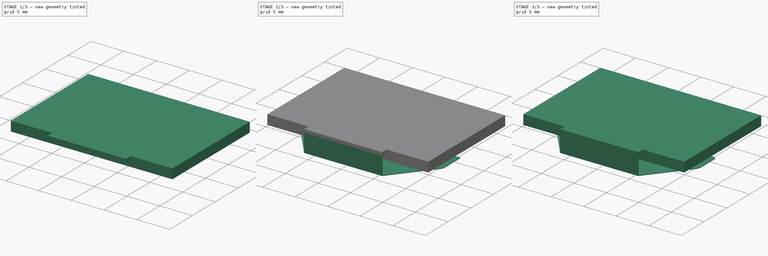
[diagram: build sequence overview — one tinted view per stage of 3, left to right]
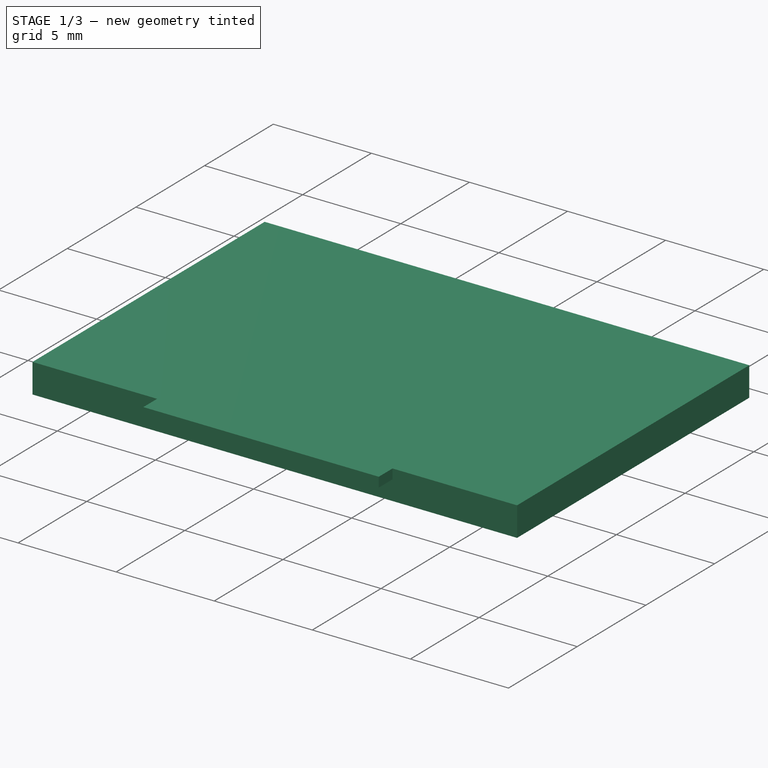
[diagram: stage 1 of 3 — iso view after this stage's code; geometry added in this stage tinted green]
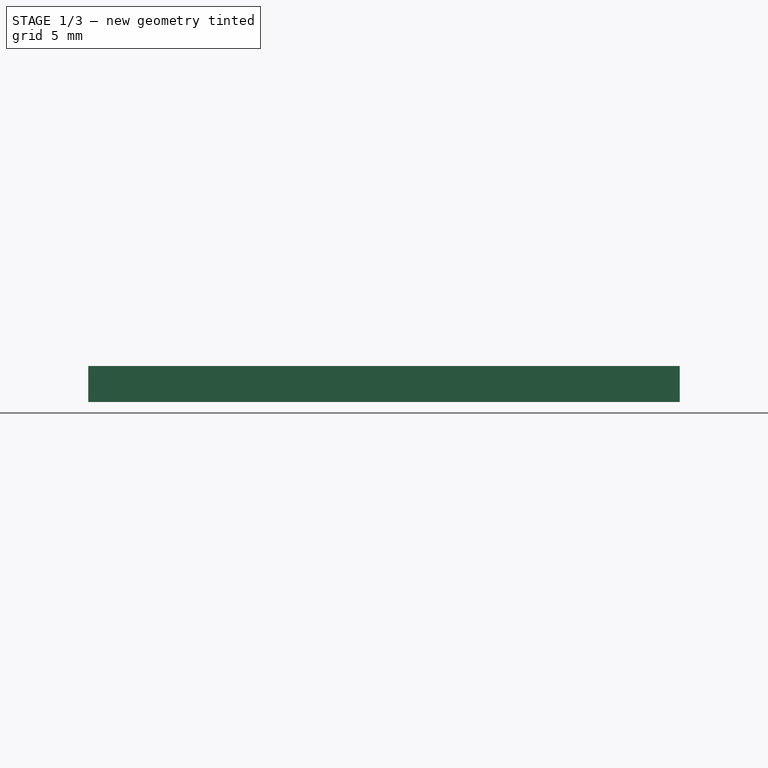
[diagram: stage 1 of 3 — front view after this stage's code; geometry added in this stage tinted green]
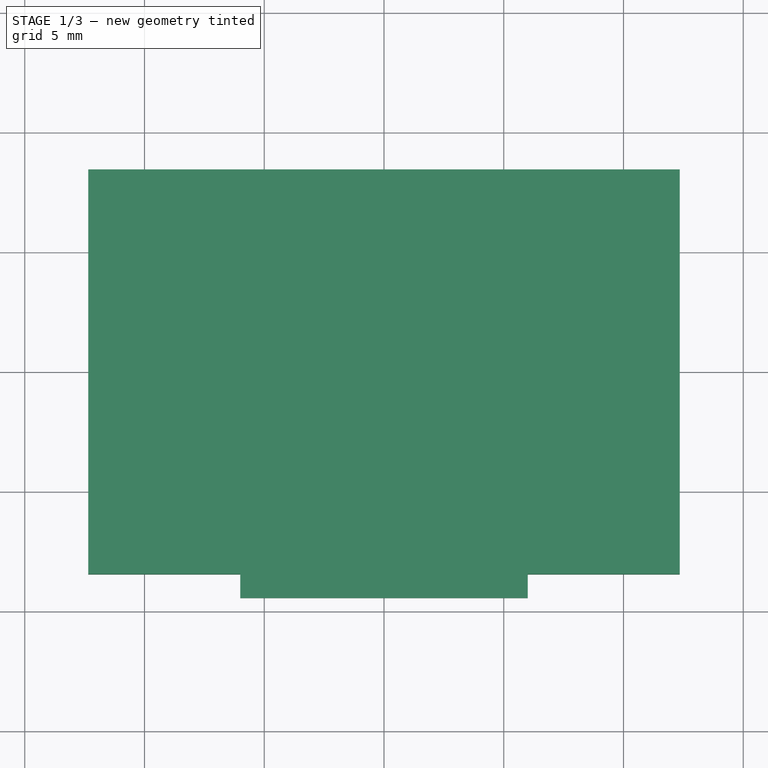
[diagram: stage 1 of 3 — top view after this stage's code; geometry added in this stage tinted green]
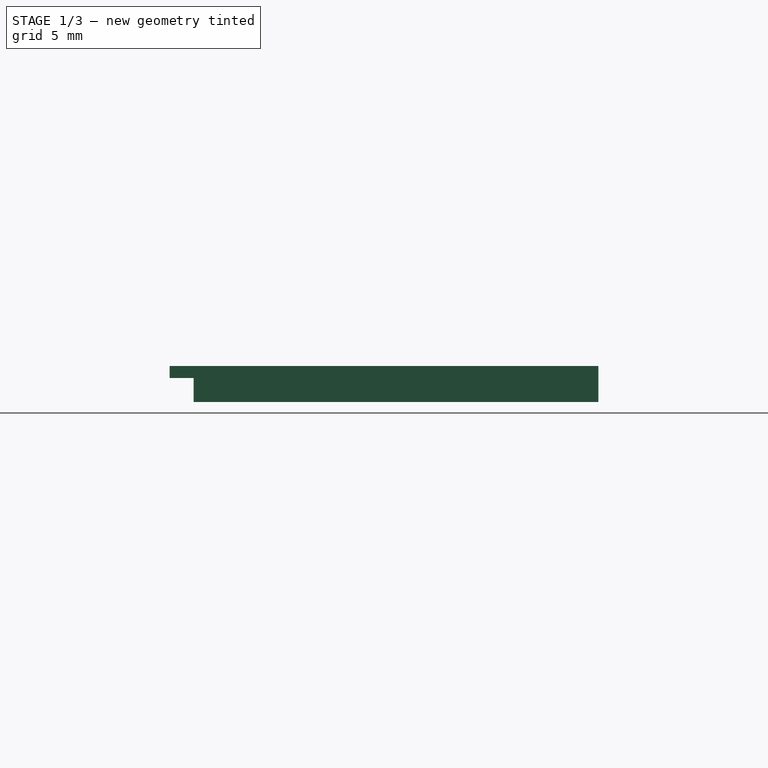
[diagram: stage 1 of 3 — right view after this stage's code; geometry added in this stage tinted green]
FCSTD DOCUMENT  (FreeCAD 0.20R29177 +426 (Git))
Label: 0.96Inch-3D-Model
License: All rights reserved
LicenseURL: http://en.wikipedia.org/wiki/All_rights_reserved
objects: Sketcher::SketchObject×5, PartDesign::Pad×5, PartDesign::Fillet×3, PartDesign::Body×1
note: 22 computed .brp shape members not serialized (recipe doc carries the construction recipe); baked Part::Feature solids carry a one-line shape summary decoded from their .brp

FEATURE [Sketcher::SketchObject] Sketch
  FullyConstrained = true
  MapMode = 5
  Support = -> [XY_Plane]
  sketch-geometry (4):
    g0: LineSegment StartX=-12.35 StartY=8.45 StartZ=0 EndX=12.35 EndY=8.45 EndZ=0
    g1: LineSegment StartX=12.35 StartY=8.45 StartZ=0 EndX=12.35 EndY=-8.45 EndZ=0
    g2: LineSegment StartX=12.35 StartY=-8.45 StartZ=0 EndX=-12.35 EndY=-8.45 EndZ=0
    g3: LineSegment StartX=-12.35 StartY=-8.45 StartZ=0 EndX=-12.35 EndY=8.45 EndZ=0
  constraints (11):
    c: Coincident(g0,g1)
    c: Coincident(g1,g2)
    c: Coincident(g2,g3)
    c: Coincident(g3,g0)
    c: Horizontal(g0)
    c: Horizontal(g2)
    c: Vertical(g1)
    c: Vertical(g3)
    c: DistanceX(g0,g0) = 24.7
    c: DistanceY(g1,g1) = 16.9
    c: Symmetric(g0,g1,g-1)
FEATURE [PartDesign::Pad] Pad
  Direction = (0,0,1)
  Length = 1.5
  Length2 = 10
  Profile = -> Sketch
  ReferenceAxis = -> Sketch [N_Axis]
  Type = 0
FEATURE [Sketcher::SketchObject] Sketch001
  ExternalGeometry = -> [Pad]
  FullyConstrained = true
  MapMode = 5
  Placement = pos=(0,0,1.5) rot=(0,0,1;0rad)
  Support = -> [Pad]
  sketch-geometry (8):
    g0: LineSegment StartX=-10.872 StartY=6.432 StartZ=0 EndX=10.872 EndY=6.432 EndZ=0
    g1: LineSegment StartX=10.872 StartY=6.432 StartZ=0 EndX=10.872 EndY=-4.432 EndZ=0
    g2: LineSegment StartX=10.872 StartY=-4.432 StartZ=0 EndX=-10.872 EndY=-4.432 EndZ=0
    g3: LineSegment StartX=-10.872 StartY=-4.432 StartZ=0 EndX=-10.872 EndY=6.432 EndZ=0
    g4: ArcOfCircle CenterX=-4.565 CenterY=-6.512 CenterZ=0 NormalX=0 NormalY=0 NormalZ=1 AngleXU=0 Radius=0.5 StartAngle=1.5708 EndAngle=4.71239
    g5: ArcOfCircle CenterX=4.565 CenterY=-6.512 CenterZ=0 NormalX=0 NormalY=0 NormalZ=1 AngleXU=0 Radius=0.5 StartAngle=4.71239 EndAngle=7.85398
    g6: LineSegment StartX=-4.565 StartY=-7.012 StartZ=0 EndX=4.565 EndY=-7.012 EndZ=0
    g7: LineSegment StartX=4.565 StartY=-6.012 StartZ=0 EndX=-4.565 EndY=-6.012 EndZ=0
  constraints (20):
    c: Coincident(g0,g1)
    c: Coincident(g1,g2)
    c: Coincident(g2,g3)
    c: Coincident(g3,g0)
    c: Horizontal(g2)
    c: Vertical(g1)
    c: Vertical(g3)
    c: DistanceX(g0,g0) = 21.744
    c: DistanceY(g1,g1) = 10.864
    c: Distance(g0,g-3) = 2.018
    c: Symmetric(g0,g0,g-2)
    c: Tangent(g4,g6) = -1.5708
    c: Tangent(g6,g5) = -1.5708
    c: Tangent(g5,g7) = -1.5708
    c: Tangent(g7,g4) = -1.5708
    c: Equal(g4,g5)
    c: Distance(g4,g4) = 1
    c: Symmetric(g4,g5,g-2)
    c: Distance(g4,g2) = 1.58
    c: Distance(g4,g5) = 9.13
FEATURE [PartDesign::Pad] Pad001
  BaseFeature = -> Pad
  Direction = (0,0,1)
  Length = 1
  Length2 = 10
  Profile = -> Sketch001
  ReferenceAxis = -> Sketch001 [N_Axis]
  Reversed = true
  Type = 0
FEATURE [Sketcher::SketchObject] Sketch002
  ExternalGeometry = -> [Pad001]
  FullyConstrained = true
  MapMode = 5
  Placement = pos=(0,-8.45,0) rot=(1,0,0;1.5708rad)
  Support = -> [Pad001]
  sketch-geometry (4):
    g0: LineSegment StartX=-6 StartY=1.5 StartZ=0 EndX=6 EndY=1.5 EndZ=0
    g1: LineSegment StartX=6 StartY=1.5 StartZ=0 EndX=6 EndY=1 EndZ=0
    g2: LineSegment StartX=6 StartY=1 StartZ=0 EndX=-6 EndY=1 EndZ=0
    g3: LineSegment StartX=-6 StartY=1 StartZ=0 EndX=-6 EndY=1.5 EndZ=0
  constraints (11):
    c: Coincident(g0,g1)
    c: Coincident(g1,g2)
    c: Coincident(g2,g3)
    c: Coincident(g3,g0)
    c: Horizontal(g2)
    c: Vertical(g1)
    c: Vertical(g3)
    c: DistanceX(g0,g0) = 12
    c: Symmetric(g0,g0,g-2)
    c: PointOnObject(g0,g-3)
    c: DistanceY(g3,g3) = 0.5
FEATURE [PartDesign::Pad] Pad002
  BaseFeature = -> Pad001
  Direction = (0,-1,2e-16)
  Length = 1
  Length2 = 10
  Profile = -> Sketch002
  ReferenceAxis = -> Sketch002 [N_Axis]
  Type = 0
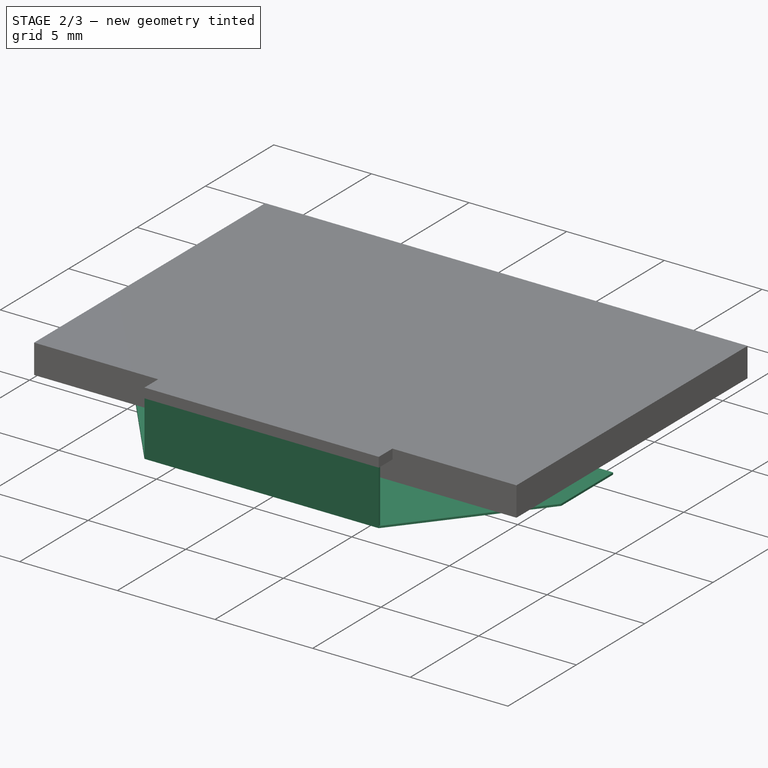
[diagram: stage 2 of 3 — iso view after this stage's code; geometry added in this stage tinted green]
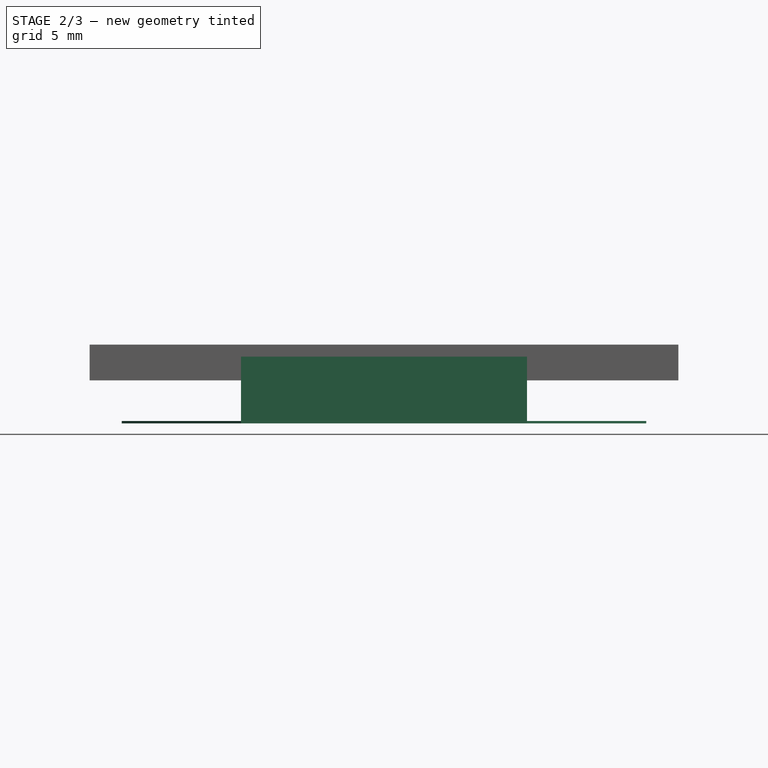
[diagram: stage 2 of 3 — front view after this stage's code; geometry added in this stage tinted green]
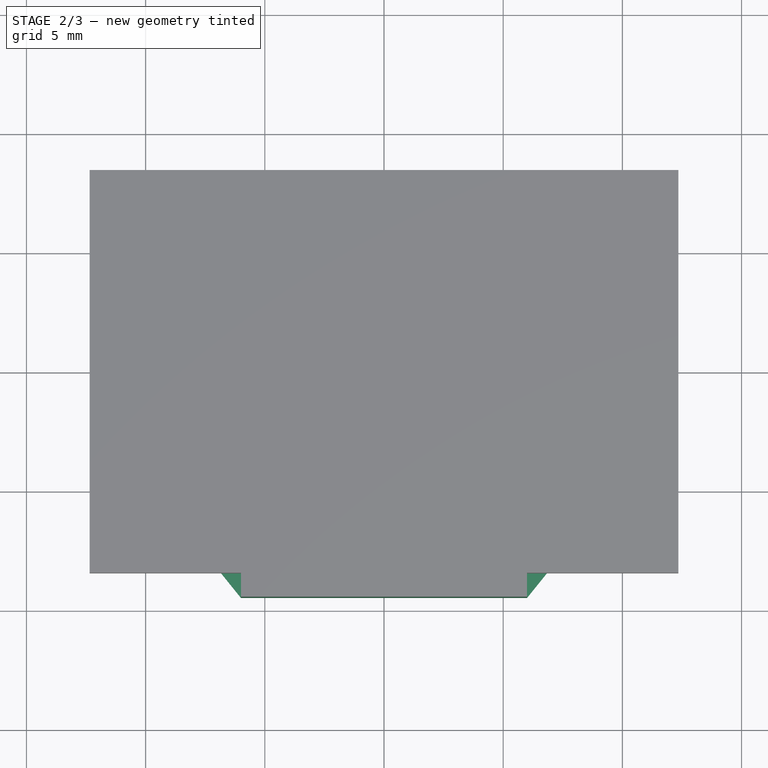
[diagram: stage 2 of 3 — top view after this stage's code; geometry added in this stage tinted green]
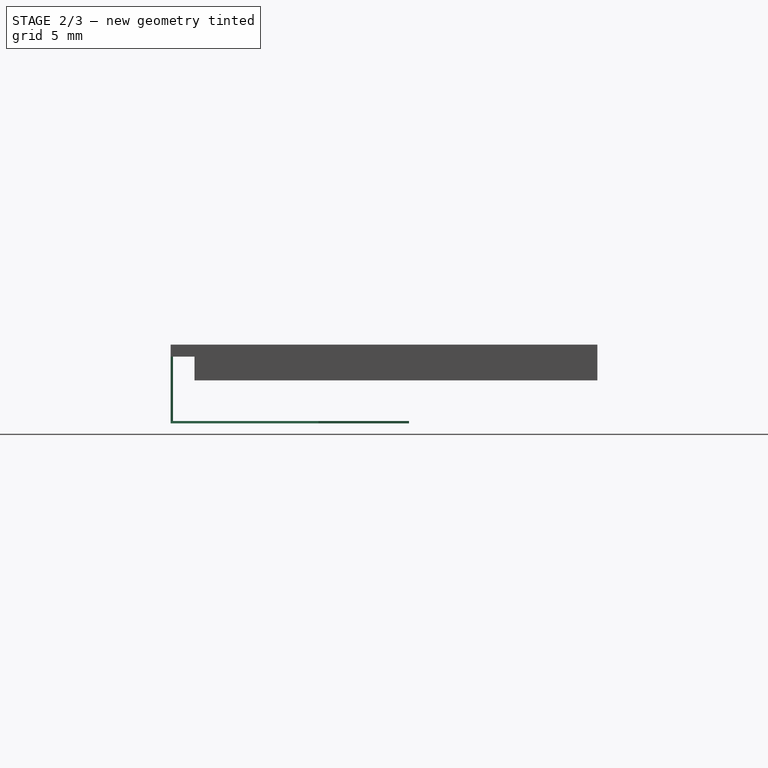
[diagram: stage 2 of 3 — right view after this stage's code; geometry added in this stage tinted green]
FEATURE [Sketcher::SketchObject] Sketch003
  ExternalGeometry = -> [Pad002]
  FullyConstrained = true
  MapMode = 5
  Placement = pos=(0,2e-16,1) rot=(1,0,0;3.14159rad)
  Support = -> [Pad002]
  sketch-geometry (4):
    g0: LineSegment StartX=-6 StartY=9.45 StartZ=0 EndX=6 EndY=9.45 EndZ=0
    g1: LineSegment StartX=6 StartY=9.45 StartZ=0 EndX=6 EndY=9.35 EndZ=0
    g2: LineSegment StartX=6 StartY=9.35 StartZ=0 EndX=-6 EndY=9.35 EndZ=0
    g3: LineSegment StartX=-6 StartY=9.35 StartZ=0 EndX=-6 EndY=9.45 EndZ=0
  constraints (10):
    c: Coincident(g0,g1)
    c: Coincident(g1,g2)
    c: Coincident(g2,g3)
    c: Coincident(g3,g0)
    c: Horizontal(g2)
    c: Vertical(g1)
    c: Vertical(g3)
    c: Coincident(g0,g-5)
    c: Coincident(g0,g-4)
    c: DistanceY(g1,g1) = 0.1
FEATURE [PartDesign::Pad] Pad003
  BaseFeature = -> Pad002
  Direction = (0,-2e-16,-1)
  Length = 2.7
  Length2 = 10
  Profile = -> Sketch003
  ReferenceAxis = -> Sketch003 [N_Axis]
  Type = 0
FEATURE [Sketcher::SketchObject] Sketch004
  ExternalGeometry = -> [Pad003]
  FullyConstrained = true
  MapMode = 5
  Placement = pos=(0,0,-1.7) rot=(1,0,0;3.14159rad)
  Support = -> [Pad003]
  sketch-geometry (6):
    g0: LineSegment StartX=-6 StartY=9.45 StartZ=0 EndX=-11 EndY=3.25 EndZ=0
    g1: LineSegment StartX=11 StartY=3.25 StartZ=0 EndX=6 EndY=9.45 EndZ=0
    g2: LineSegment StartX=6 StartY=9.45 StartZ=0 EndX=-6 EndY=9.45 EndZ=0
    g3: LineSegment StartX=-11 StartY=3.25 StartZ=0 EndX=-11 EndY=-0.55 EndZ=0
    g4: LineSegment StartX=-11 StartY=-0.55 StartZ=0 EndX=11 EndY=-0.55 EndZ=0
    g5: LineSegment StartX=11 StartY=-0.55 StartZ=0 EndX=11 EndY=3.25 EndZ=0
  constraints (15):
    c: Coincident(g1,g2)
    c: Coincident(g2,g0)
    c: Coincident(g0,g3)
    c: Coincident(g3,g4)
    c: Coincident(g4,g5)
    c: Coincident(g5,g1)
    c: Vertical(g5)
    c: Vertical(g3)
    c: Coincident(g1,g-3)
    c: Coincident(g0,g-3)
    c: DistanceX(g4,g4) = 22
    c: Symmetric(g4,g3,g-2)
    c: Equal(g3,g5)
    c: DistanceY(g3,g3) = 3.8
    c: Distance(g0,g4) = 10
FEATURE [PartDesign::Pad] Pad004
  BaseFeature = -> Pad003
  Direction = (0,0,-1)
  Length = 0.1
  Length2 = 10
  Profile = -> Sketch004
  ReferenceAxis = -> Sketch004 [N_Axis]
  Type = 0
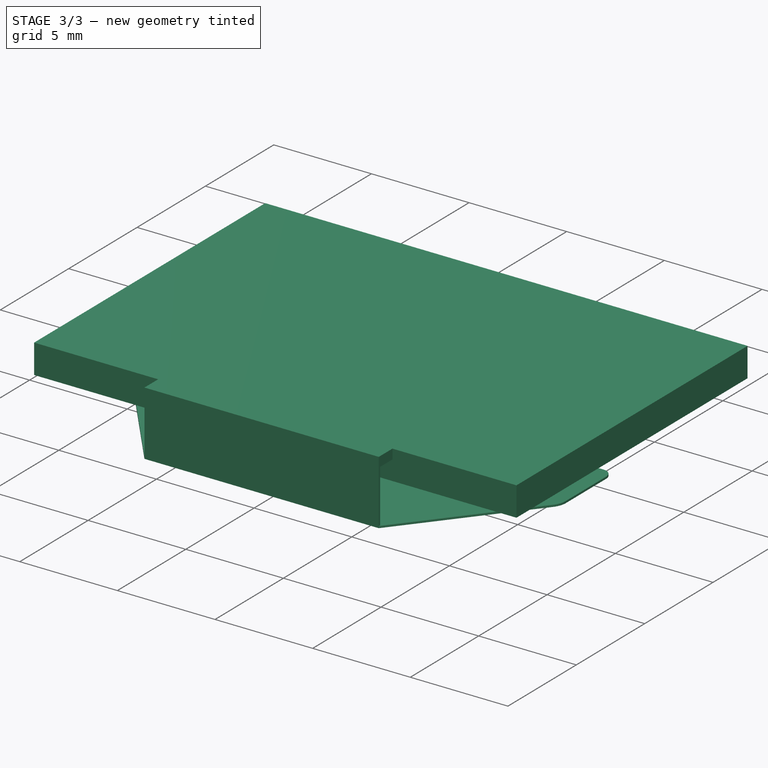
[diagram: stage 3 of 3 — iso view after this stage's code; geometry added in this stage tinted green]
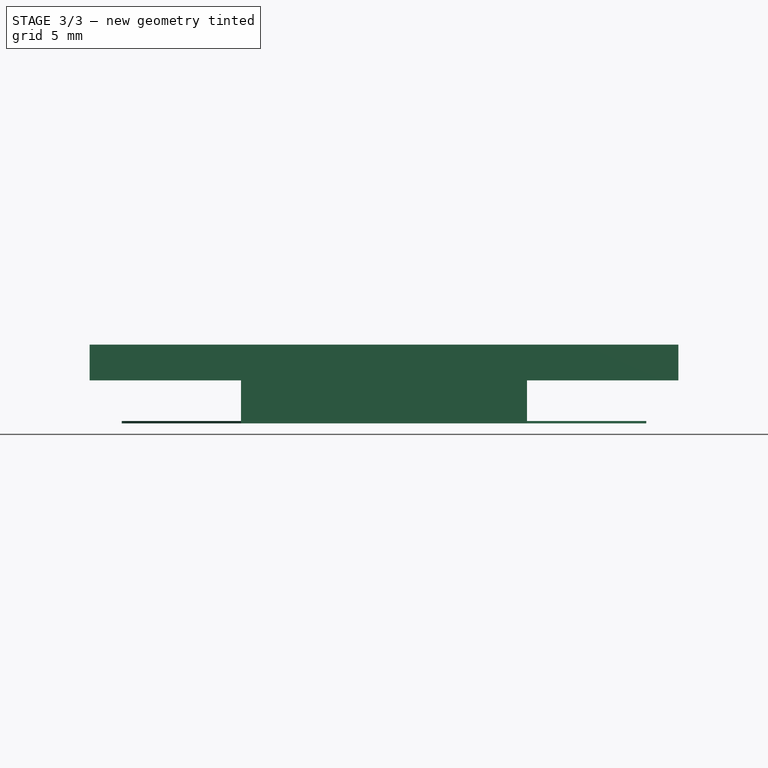
[diagram: stage 3 of 3 — front view after this stage's code; geometry added in this stage tinted green]
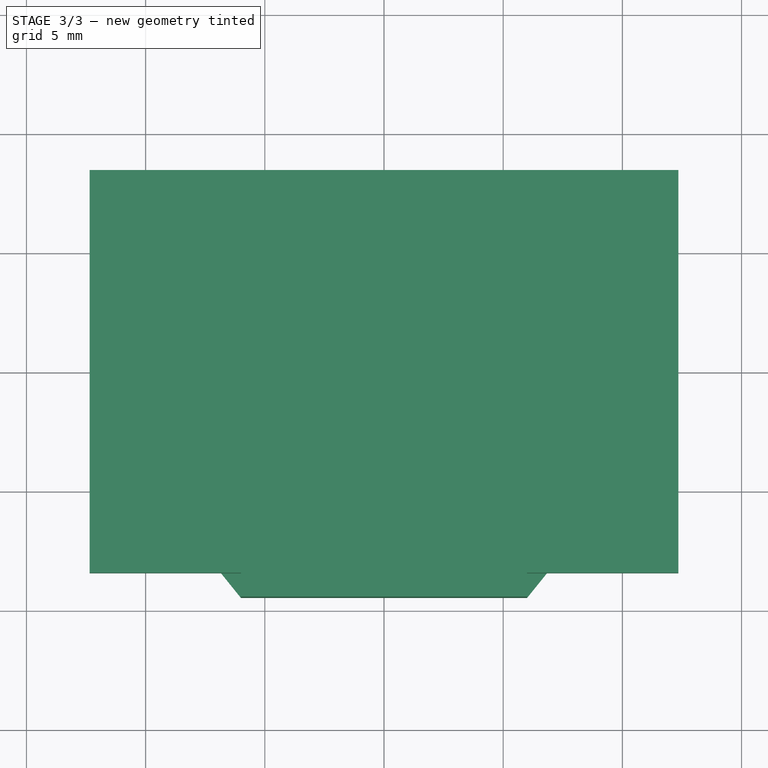
[diagram: stage 3 of 3 — top view after this stage's code; geometry added in this stage tinted green]
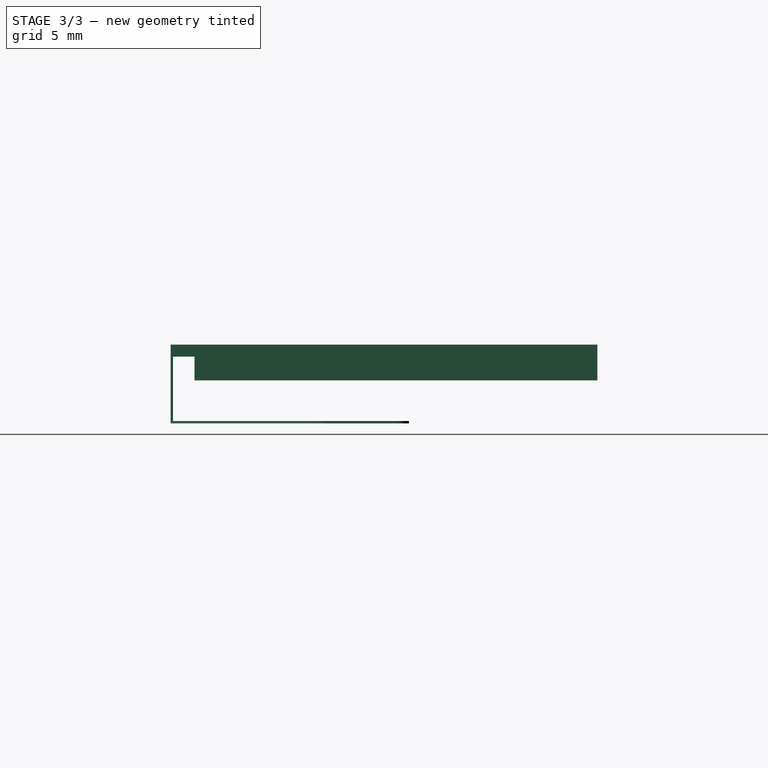
[diagram: stage 3 of 3 — right view after this stage's code; geometry added in this stage tinted green]
FEATURE [PartDesign::Fillet] Fillet
  Base = -> Pad004 [Edge55,Edge57]
  BaseFeature = -> Pad004
  Radius = 0.5
  SupportTransform = false
  UseAllEdges = false
FEATURE [PartDesign::Fillet] Fillet001
  Base = -> Fillet [Edge12]
  BaseFeature = -> Fillet
  Radius = 1
  SupportTransform = false
  UseAllEdges = false
FEATURE [PartDesign::Fillet] Fillet002
  Base = -> Fillet001 [Edge30]
  BaseFeature = -> Fillet001
  Radius = 1
  SupportTransform = false
  UseAllEdges = false
FEATURE [PartDesign::Body] Body
  Group = -> [Sketch,Pad,Sketch001,Pad001,Sketch002,Pad002,Sketch003,Pad003,Sketch004,Pad004,Fillet,Fillet001,Fillet002]
  Origin = -> Origin
  Tip = -> Fillet002
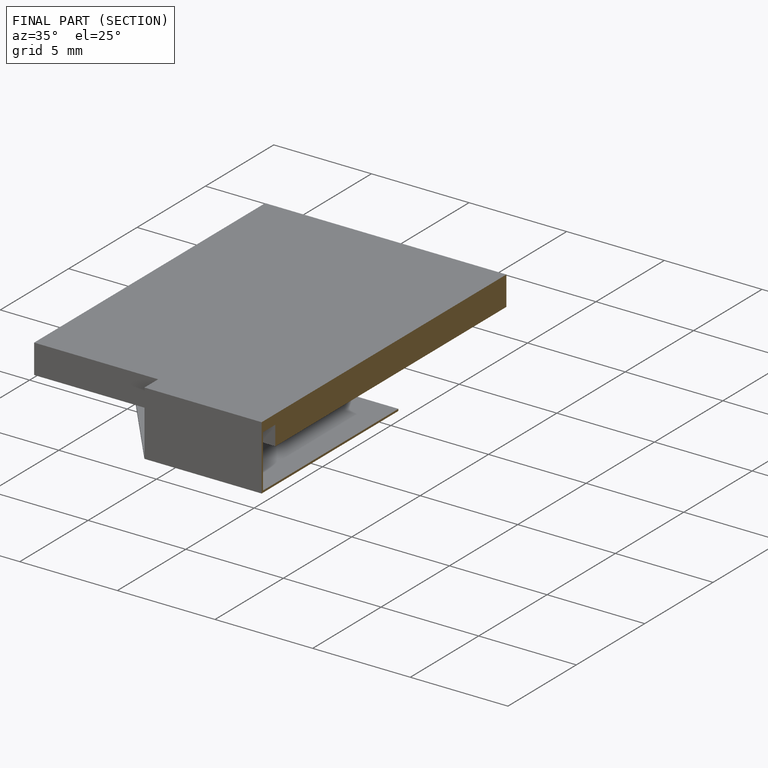
[diagram: finished part — half-section view (interior)]
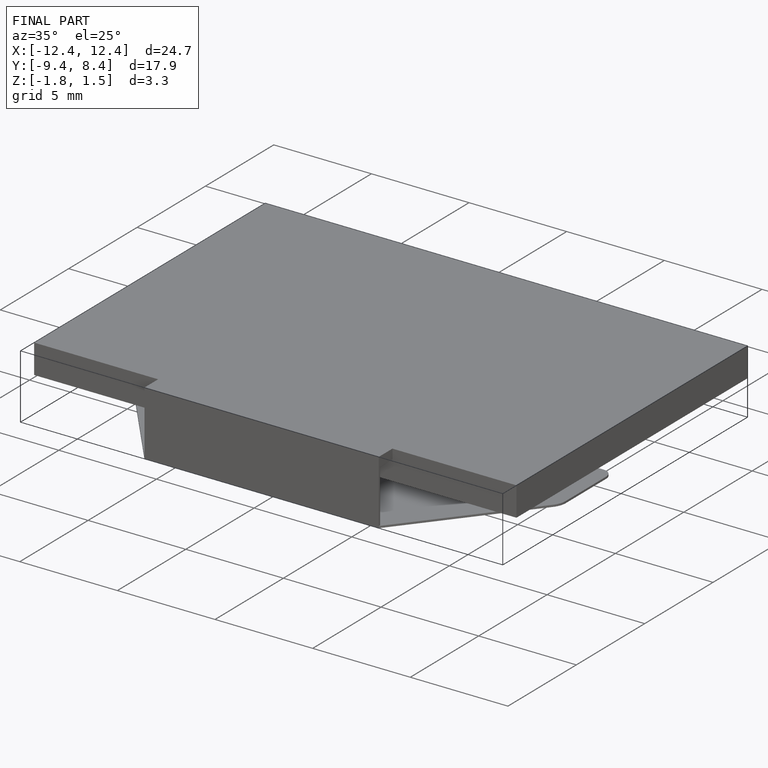
[diagram: finished part — iso view with bounding-box wireframe]
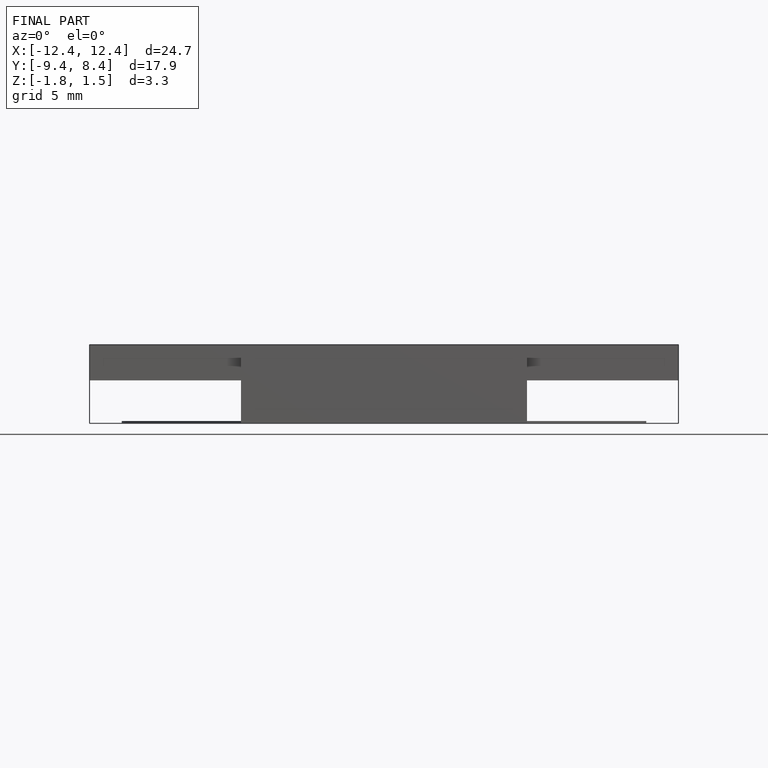
[diagram: finished part — front view with bounding-box wireframe]
